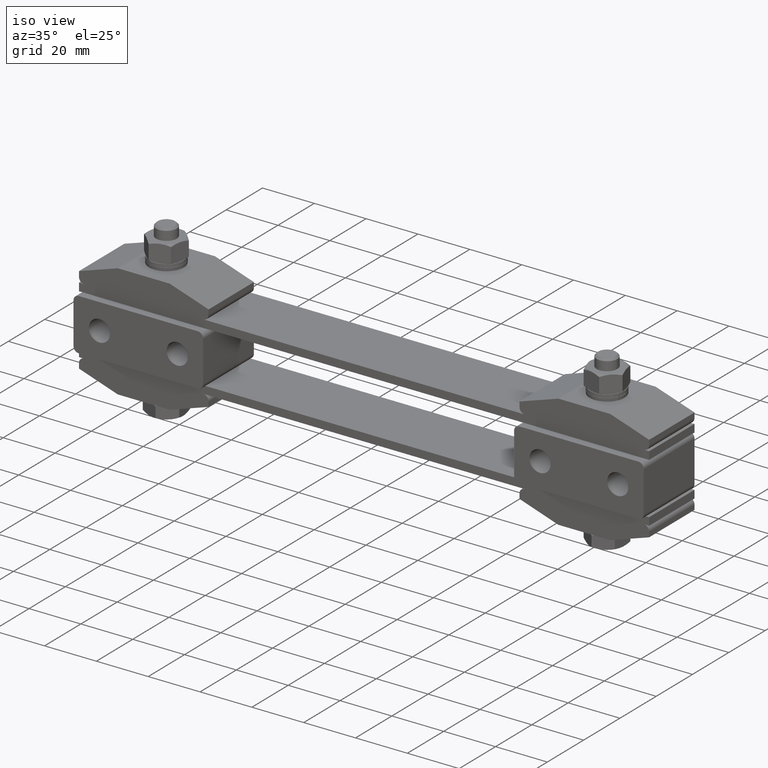
[diagram: clean part render]
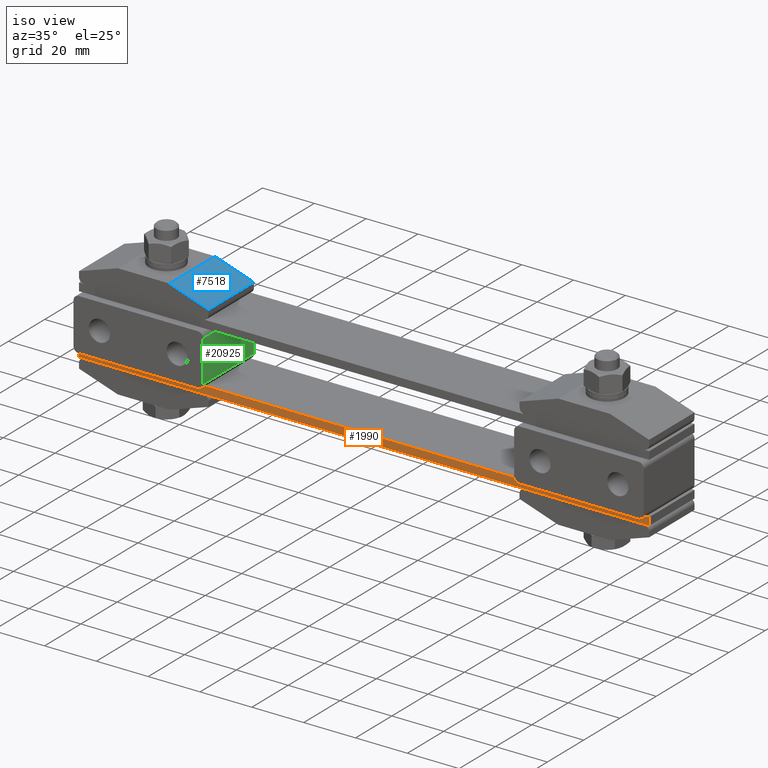
[diagram: same view with three faces highlighted in distinct colors, each labeled with its STEP entity id]
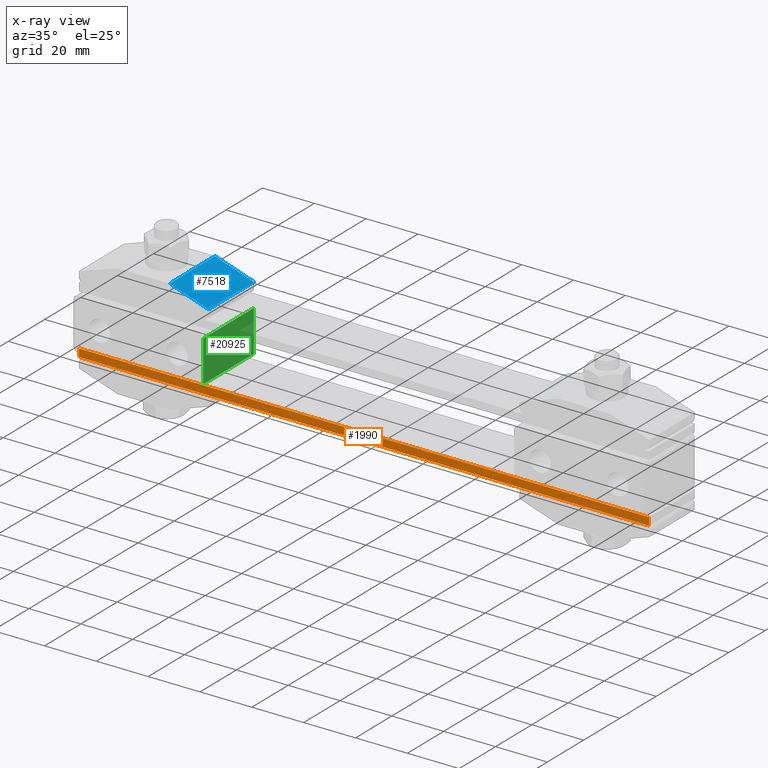
[diagram: x-ray of the same camera — body ghosted, the three highlighted faces saturated]
A machine part, iso view with three faces highlighted in distinct colors.
The next image is the same camera in x-ray (body ghosted, the three faces saturated) — at least one of them is partly hidden behind the body in this view.
Their STEP definitions:

[orange] entity #1990 — the highlighted planar face has unit normal (0, 1, 0).
#1122 = ORIENTED_EDGE ( 'NONE', *, *, #15647, .T. ) ;
#1794 = EDGE_CURVE ( 'NONE', #16324, #16066, #19070, .T. ) ;
#1872 = DIRECTION ( 'NONE',  ( 1.000000000000000000, 0.0000000000000000000, 0.0000000000000000000 ) ) ;
#1990 = ADVANCED_FACE ( 'NONE', ( #13431 ), #14891, .F. ) ;
#2693 = CARTESIAN_POINT ( 'NONE',  ( -110.0000000000000000, -12.50000000000000000, 3.000000000000000000 ) ) ;
#3648 = CARTESIAN_POINT ( 'NONE',  ( -110.0000000000000000, -12.50000000000000000, 3.000000000000000000 ) ) ;
#4192 = DIRECTION ( 'NONE',  ( 0.0000000000000000000, 0.0000000000000000000, -1.000000000000000000 ) ) ;
#4194 = ORIENTED_EDGE ( 'NONE', *, *, #1794, .T. ) ;
#4823 = LINE ( 'NONE', #6743, #14318 ) ;
#4929 = VECTOR ( 'NONE', #15031, 1000.000000000000000 ) ;
#5129 = LINE ( 'NONE', #14051, #14878 ) ;
#5352 = DIRECTION ( 'NONE',  ( 0.0000000000000000000, 0.0000000000000000000, 1.000000000000000000 ) ) ;
#6239 = ORIENTED_EDGE ( 'NONE', *, *, #20482, .F. ) ;
#6743 = CARTESIAN_POINT ( 'NONE',  ( -110.0000000000000000, -12.50000000000000000, 0.0000000000000000000 ) ) ;
#6993 = DIRECTION ( 'NONE',  ( 0.0000000000000000000, 1.000000000000000000, 0.0000000000000000000 ) ) ;
#10283 = CARTESIAN_POINT ( 'NONE',  ( -110.0000000000000000, -12.50000000000000000, 3.000000000000000000 ) ) ;
#10319 = CARTESIAN_POINT ( 'NONE',  ( 110.0000000000000000, -12.50000000000000000, 0.0000000000000000000 ) ) ;
#10885 = VECTOR ( 'NONE', #4192, 1000.000000000000000 ) ;
#12399 = LINE ( 'NONE', #20189, #4929 ) ;
#12574 = AXIS2_PLACEMENT_3D ( 'NONE', #10283, #6993, #5352 ) ;
#12855 = CARTESIAN_POINT ( 'NONE',  ( 110.0000000000000000, -12.50000000000000000, 3.000000000000000000 ) ) ;
#13431 = FACE_OUTER_BOUND ( 'NONE', #15929, .T. ) ;
#14051 = CARTESIAN_POINT ( 'NONE',  ( -110.0000000000000000, -12.50000000000000000, 3.000000000000000000 ) ) ;
#14318 = VECTOR ( 'NONE', #1872, 1000.000000000000000 ) ;
#14423 = EDGE_CURVE ( 'NONE', #16324, #21188, #5129, .T. ) ;
#14878 = VECTOR ( 'NONE', #20741, 1000.000000000000000 ) ;
#14891 = PLANE ( 'NONE',  #12574 ) ;
#15031 = DIRECTION ( 'NONE',  ( 0.0000000000000000000, 0.0000000000000000000, -1.000000000000000000 ) ) ;
#15261 = CARTESIAN_POINT ( 'NONE',  ( -110.0000000000000000, -12.50000000000000000, 0.0000000000000000000 ) ) ;
#15294 = VERTEX_POINT ( 'NONE', #10319 ) ;
#15647 = EDGE_CURVE ( 'NONE', #16066, #15294, #4823, .T. ) ;
#15929 = EDGE_LOOP ( 'NONE', ( #1122, #6239, #18497, #4194 ) ) ;
#16066 = VERTEX_POINT ( 'NONE', #15261 ) ;
#16324 = VERTEX_POINT ( 'NONE', #3648 ) ;
#18497 = ORIENTED_EDGE ( 'NONE', *, *, #14423, .F. ) ;
#19070 = LINE ( 'NONE', #2693, #10885 ) ;
#20189 = CARTESIAN_POINT ( 'NONE',  ( 110.0000000000000000, -12.50000000000000000, 3.000000000000000000 ) ) ;
#20482 = EDGE_CURVE ( 'NONE', #21188, #15294, #12399, .T. ) ;
#20741 = DIRECTION ( 'NONE',  ( 1.000000000000000000, 0.0000000000000000000, 0.0000000000000000000 ) ) ;
#21188 = VERTEX_POINT ( 'NONE', #12855 ) ;

[blue] entity #7518 — the highlighted planar face has unit normal (-0.3162, 0, -0.9487).
#226 = VERTEX_POINT ( 'NONE', #13458 ) ;
#601 = LINE ( 'NONE', #9821, #19035 ) ;
#1944 = DIRECTION ( 'NONE',  ( -5.519574696289909500E-017, -1.000000000000000000, 4.040289502454679900E-018 ) ) ;
#2131 = ORIENTED_EDGE ( 'NONE', *, *, #20730, .F. ) ;
#3320 = EDGE_CURVE ( 'NONE', #15287, #20469, #9032, .T. ) ;
#3501 = LINE ( 'NONE', #13400, #20450 ) ;
#3691 = CARTESIAN_POINT ( 'NONE',  ( -60.00000000000000000, -12.50000000000000000, 30.00000000000000000 ) ) ;
#4604 = VECTOR ( 'NONE', #1944, 1000.000000000000000 ) ;
#5162 = CARTESIAN_POINT ( 'NONE',  ( -60.00000000000000000, 14.00000000000000000, 30.00000000000000000 ) ) ;
#6619 = ORIENTED_EDGE ( 'NONE', *, *, #3320, .F. ) ;
#7518 = ADVANCED_FACE ( 'NONE', ( #19474 ), #17609, .F. ) ;
#8649 = CARTESIAN_POINT ( 'NONE',  ( -60.00000000000000000, 12.50000000000000000, 30.00000000000000000 ) ) ;
#9032 = LINE ( 'NONE', #5162, #4604 ) ;
#9573 = CARTESIAN_POINT ( 'NONE',  ( -75.00000000000000000, 14.00000000000000000, 35.00000000000000000 ) ) ;
#9821 = CARTESIAN_POINT ( 'NONE',  ( -103.8000000000000000, 12.50000000000000000, 44.60000000000000100 ) ) ;
#10495 = EDGE_CURVE ( 'NONE', #226, #16898, #3501, .T. ) ;
#11110 = EDGE_LOOP ( 'NONE', ( #17622, #15503, #6619, #2131 ) ) ;
#12612 = LINE ( 'NONE', #14553, #14894 ) ;
#12786 = DIRECTION ( 'NONE',  ( -0.3162277660168375000, 1.362147258544019300E-017, -0.9486832980505139900 ) ) ;
#13099 = DIRECTION ( 'NONE',  ( 0.9486832980505139900, -5.364093499054596300E-017, -0.3162277660168375000 ) ) ;
#13400 = CARTESIAN_POINT ( 'NONE',  ( -75.00000000000000000, 12.50000000000000000, 35.00000000000000000 ) ) ;
#13458 = CARTESIAN_POINT ( 'NONE',  ( -75.00000000000000000, -12.50000000000000000, 35.00000000000000000 ) ) ;
#14553 = CARTESIAN_POINT ( 'NONE',  ( -103.8000000000000000, -12.50000000000000000, 44.60000000000000100 ) ) ;
#14894 = VECTOR ( 'NONE', #16279, 999.9999999999997700 ) ;
#15287 = VERTEX_POINT ( 'NONE', #8649 ) ;
#15503 = ORIENTED_EDGE ( 'NONE', *, *, #21264, .F. ) ;
#15637 = DIRECTION ( 'NONE',  ( 5.519574696289909500E-017, 1.000000000000000000, -4.040289502454679900E-018 ) ) ;
#16279 = DIRECTION ( 'NONE',  ( -0.9486832980505139900, 5.364093499054596300E-017, 0.3162277660168375000 ) ) ;
#16898 = VERTEX_POINT ( 'NONE', #18479 ) ;
#17609 = PLANE ( 'NONE',  #19399 ) ;
#17622 = ORIENTED_EDGE ( 'NONE', *, *, #10495, .F. ) ;
#18479 = CARTESIAN_POINT ( 'NONE',  ( -75.00000000000000000, 12.50000000000000000, 35.00000000000000000 ) ) ;
#19035 = VECTOR ( 'NONE', #13099, 999.9999999999997700 ) ;
#19399 = AXIS2_PLACEMENT_3D ( 'NONE', #9573, #12786, #21010 ) ;
#19474 = FACE_OUTER_BOUND ( 'NONE', #11110, .T. ) ;
#20450 = VECTOR ( 'NONE', #15637, 1000.000000000000000 ) ;
#20469 = VERTEX_POINT ( 'NONE', #3691 ) ;
#20730 = EDGE_CURVE ( 'NONE', #16898, #15287, #601, .T. ) ;
#21010 = DIRECTION ( 'NONE',  ( 0.9486832980505139900, -5.364093499054596300E-017, -0.3162277660168375000 ) ) ;
#21264 = EDGE_CURVE ( 'NONE', #20469, #226, #12612, .T. ) ;

[green] entity #20925 — the highlighted planar face has unit normal (-1, 0, 0).
#312 = EDGE_CURVE ( 'NONE', #617, #14258, #19908, .T. ) ;
#515 = VECTOR ( 'NONE', #1450, 1000.000000000000000 ) ;
#617 = VERTEX_POINT ( 'NONE', #1548 ) ;
#1450 = DIRECTION ( 'NONE',  ( 0.0000000000000000000, 0.0000000000000000000, 1.000000000000000000 ) ) ;
#1548 = CARTESIAN_POINT ( 'NONE',  ( -60.00000000000000000, 12.50000000000000000, 21.00000000000000000 ) ) ;
#1695 = VECTOR ( 'NONE', #19551, 1000.000000000000000 ) ;
#2826 = EDGE_LOOP ( 'NONE', ( #18880, #9437, #13395, #17641 ) ) ;
#3197 = LINE ( 'NONE', #21080, #1695 ) ;
#3401 = CARTESIAN_POINT ( 'NONE',  ( -60.00000000000000000, -15.50000000000000000, 5.000000000000000000 ) ) ;
#4320 = EDGE_CURVE ( 'NONE', #18386, #617, #3197, .T. ) ;
#4555 = CARTESIAN_POINT ( 'NONE',  ( -60.00000000000000000, -15.50000000000000000, 3.000000000000000000 ) ) ;
#5388 = DIRECTION ( 'NONE',  ( -1.000000000000000000, 3.885780586188035100E-016, 0.0000000000000000000 ) ) ;
#7065 = VECTOR ( 'NONE', #18685, 1000.000000000000000 ) ;
#7319 = DIRECTION ( 'NONE',  ( -1.221245327087670000E-015, 1.000000000000000000, -0.0000000000000000000 ) ) ;
#7818 = VECTOR ( 'NONE', #7319, 1000.000000000000000 ) ;
#8802 = DIRECTION ( 'NONE',  ( 0.0000000000000000000, 0.0000000000000000000, 1.000000000000000000 ) ) ;
#8811 = CARTESIAN_POINT ( 'NONE',  ( -60.00000000000000000, 12.50000000000000000, 21.00000000000000000 ) ) ;
#9410 = LINE ( 'NONE', #10457, #7818 ) ;
#9437 = ORIENTED_EDGE ( 'NONE', *, *, #19233, .T. ) ;
#9785 = VERTEX_POINT ( 'NONE', #3401 ) ;
#10457 = CARTESIAN_POINT ( 'NONE',  ( -60.00000000000000000, 12.50000000000000000, 5.000000000000000000 ) ) ;
#10591 = CARTESIAN_POINT ( 'NONE',  ( -60.00000000000000000, 12.50000000000000000, 3.000000000000000000 ) ) ;
#12371 = FACE_OUTER_BOUND ( 'NONE', #2826, .T. ) ;
#13395 = ORIENTED_EDGE ( 'NONE', *, *, #4320, .T. ) ;
#14258 = VERTEX_POINT ( 'NONE', #17158 ) ;
#15874 = LINE ( 'NONE', #4555, #515 ) ;
#16761 = EDGE_CURVE ( 'NONE', #9785, #14258, #15874, .T. ) ;
#17158 = CARTESIAN_POINT ( 'NONE',  ( -60.00000000000000000, -15.50000000000000000, 21.00000000000000000 ) ) ;
#17641 = ORIENTED_EDGE ( 'NONE', *, *, #312, .T. ) ;
#17888 = AXIS2_PLACEMENT_3D ( 'NONE', #10591, #5388, #8802 ) ;
#18324 = CARTESIAN_POINT ( 'NONE',  ( -60.00000000000000000, 12.50000000000000000, 5.000000000000000000 ) ) ;
#18386 = VERTEX_POINT ( 'NONE', #18324 ) ;
#18685 = DIRECTION ( 'NONE',  ( 1.221245327087670000E-015, -1.000000000000000000, 0.0000000000000000000 ) ) ;
#18880 = ORIENTED_EDGE ( 'NONE', *, *, #16761, .F. ) ;
#19233 = EDGE_CURVE ( 'NONE', #9785, #18386, #9410, .T. ) ;
#19551 = DIRECTION ( 'NONE',  ( 0.0000000000000000000, 0.0000000000000000000, 1.000000000000000000 ) ) ;
#19908 = LINE ( 'NONE', #8811, #7065 ) ;
#20309 = PLANE ( 'NONE',  #17888 ) ;
#20925 = ADVANCED_FACE ( 'NONE', ( #12371 ), #20309, .F. ) ;
#21080 = CARTESIAN_POINT ( 'NONE',  ( -60.00000000000000000, 12.50000000000000000, 3.000000000000000000 ) ) ;